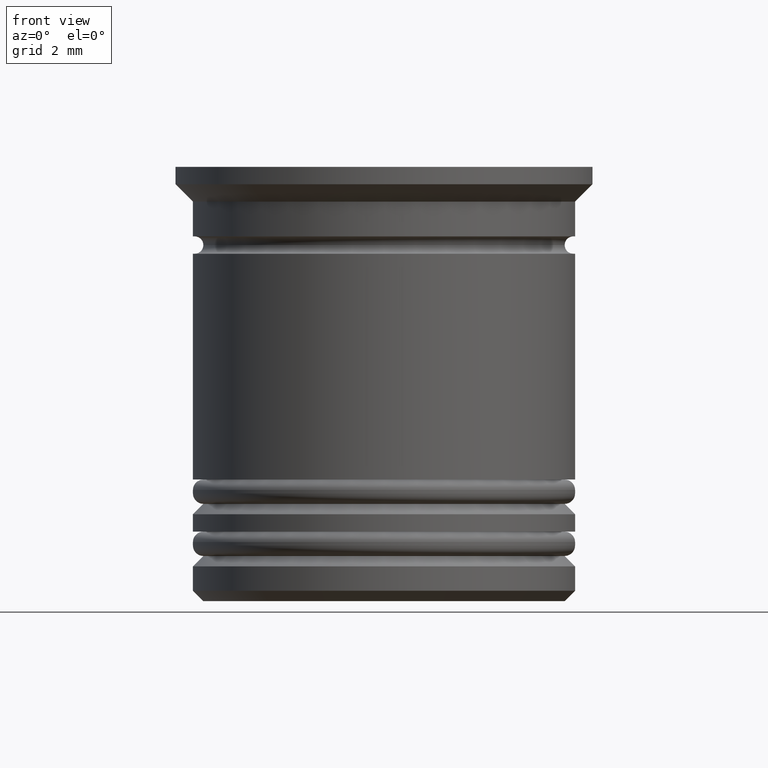
[diagram: clean part render]
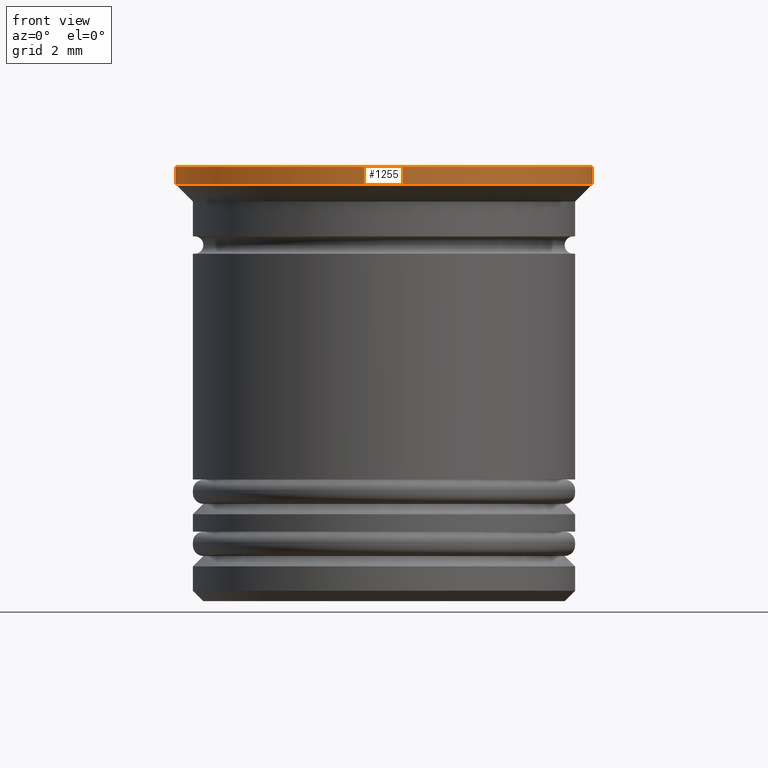
[diagram: same view with one face highlighted and labeled with its STEP entity id]
A machine part, front view. The second image highlights one B-rep face of the part: STEP entity #1255.
In plain terms, the highlighted cylindrical surface (partial cylindrical patch) has radius 6 mm, axis along (-0, -0, 1).
Its self-contained STEP definition (entity closure, byte-faithful):
#28 = ORIENTED_EDGE ( 'NONE', *, *, #187, .F. ) ;
#34 = ORIENTED_EDGE ( 'NONE', *, *, #465, .T. ) ;
#66 = DIRECTION ( 'NONE',  ( -1.000000000000000000, 0.000000000000000000, 0.000000000000000000 ) ) ;
#170 = CARTESIAN_POINT ( 'NONE',  ( 6.000000000000000000, 0.000000000000000000, -0.4999999999999982792 ) ) ;
#187 = EDGE_CURVE ( 'NONE', #402, #427, #1751, .T. ) ;
#198 = CARTESIAN_POINT ( 'NONE',  ( 0.000000000000000000, 0.000000000000000000, 0.000000000000000000 ) ) ;
#211 = AXIS2_PLACEMENT_3D ( 'NONE', #1411, #1435, #66 ) ;
#229 = EDGE_CURVE ( 'NONE', #709, #402, #1156, .T. ) ;
#285 = EDGE_CURVE ( 'NONE', #783, #427, #580, .T. ) ;
#402 = VERTEX_POINT ( 'NONE', #1892 ) ;
#427 = VERTEX_POINT ( 'NONE', #1741 ) ;
#465 = EDGE_CURVE ( 'NONE', #709, #783, #936, .T. ) ;
#486 = CARTESIAN_POINT ( 'NONE',  ( 6.000000000000000000, 0.000000000000000000, 0.000000000000000000 ) ) ;
#570 = EDGE_LOOP ( 'NONE', ( #1604, #34, #1764, #28 ) ) ;
#580 = LINE ( 'NONE', #486, #646 ) ;
#637 = CARTESIAN_POINT ( 'NONE',  ( -6.000000000000000000, 7.347880794884119736E-16, -0.4999999999999982792 ) ) ;
#646 = VECTOR ( 'NONE', #1699, 1000.000000000000000 ) ;
#681 = DIRECTION ( 'NONE',  ( -0.000000000000000000, -0.000000000000000000, 1.000000000000000000 ) ) ;
#709 = VERTEX_POINT ( 'NONE', #637 ) ;
#722 = CARTESIAN_POINT ( 'NONE',  ( -6.000000000000000000, 7.347880794884119736E-16, 0.000000000000000000 ) ) ;
#775 = AXIS2_PLACEMENT_3D ( 'NONE', #1802, #1479, #1190 ) ;
#783 = VERTEX_POINT ( 'NONE', #170 ) ;
#926 = AXIS2_PLACEMENT_3D ( 'NONE', #198, #681, #1468 ) ;
#936 = CIRCLE ( 'NONE', #211, 6.000000000000000000 ) ;
#1156 = LINE ( 'NONE', #722, #1846 ) ;
#1190 = DIRECTION ( 'NONE',  ( 1.000000000000000000, 0.000000000000000000, 0.000000000000000000 ) ) ;
#1255 = ADVANCED_FACE ( 'NONE', ( #1270 ), #1278, .T. ) ;
#1270 = FACE_OUTER_BOUND ( 'NONE', #570, .T. ) ;
#1278 = CYLINDRICAL_SURFACE ( 'NONE', #926, 6.000000000000000000 ) ;
#1411 = CARTESIAN_POINT ( 'NONE',  ( 0.000000000000000000, 0.000000000000000000, -0.4999999999999982792 ) ) ;
#1435 = DIRECTION ( 'NONE',  ( -0.000000000000000000, -0.000000000000000000, 1.000000000000000000 ) ) ;
#1468 = DIRECTION ( 'NONE',  ( 1.000000000000000000, 0.000000000000000000, 0.000000000000000000 ) ) ;
#1479 = DIRECTION ( 'NONE',  ( -0.000000000000000000, -0.000000000000000000, 1.000000000000000000 ) ) ;
#1604 = ORIENTED_EDGE ( 'NONE', *, *, #229, .F. ) ;
#1675 = DIRECTION ( 'NONE',  ( -0.000000000000000000, -0.000000000000000000, 1.000000000000000000 ) ) ;
#1699 = DIRECTION ( 'NONE',  ( -0.000000000000000000, -0.000000000000000000, 1.000000000000000000 ) ) ;
#1741 = CARTESIAN_POINT ( 'NONE',  ( 6.000000000000000000, 0.000000000000000000, 0.000000000000000000 ) ) ;
#1751 = CIRCLE ( 'NONE', #775, 6.000000000000000000 ) ;
#1764 = ORIENTED_EDGE ( 'NONE', *, *, #285, .T. ) ;
#1802 = CARTESIAN_POINT ( 'NONE',  ( 0.000000000000000000, 0.000000000000000000, 0.000000000000000000 ) ) ;
#1846 = VECTOR ( 'NONE', #1675, 1000.000000000000000 ) ;
#1892 = CARTESIAN_POINT ( 'NONE',  ( -6.000000000000000000, 7.347880794884119736E-16, 0.000000000000000000 ) ) ;